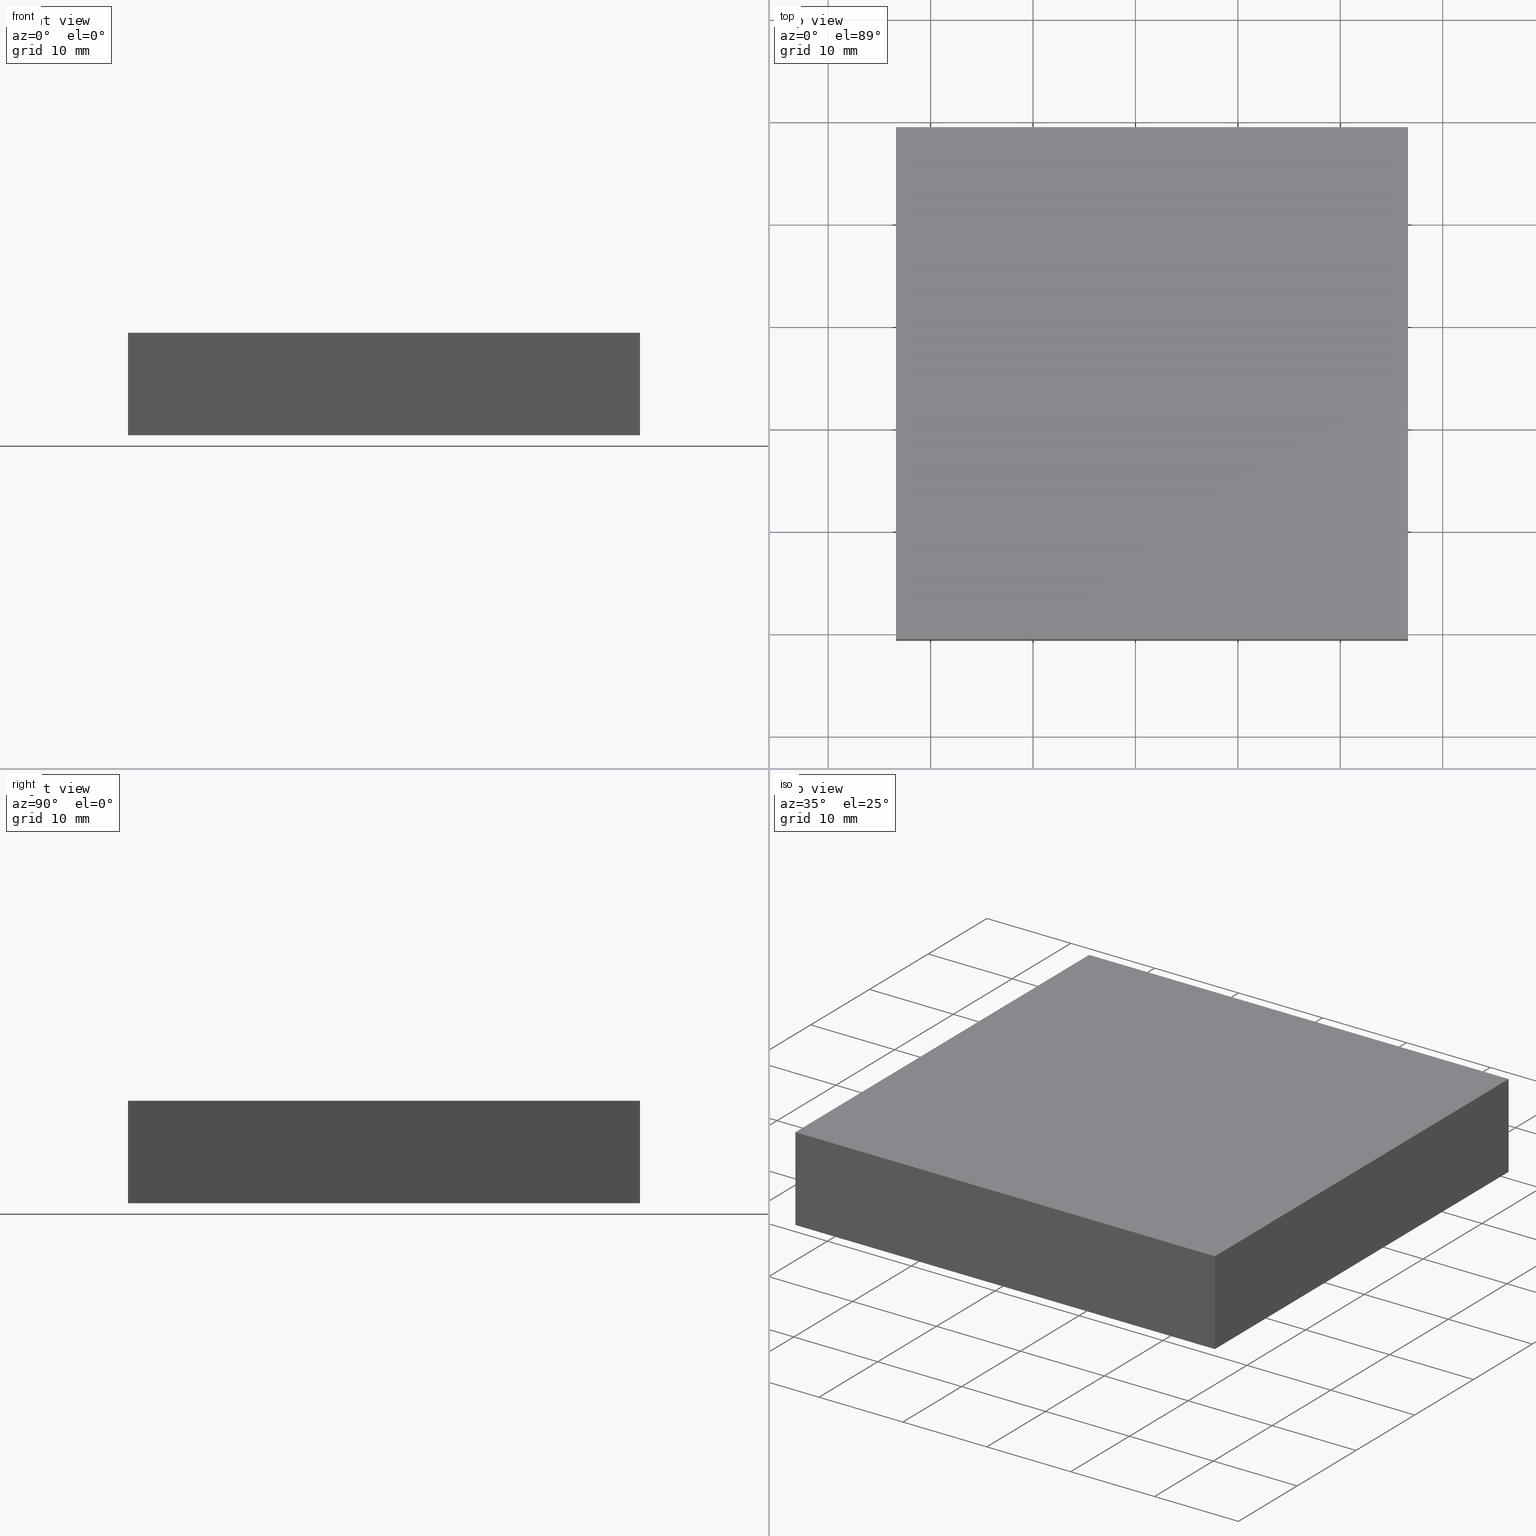
[diagram: canonical four-view strip — front | top / right | iso, engineering-drawing reading convention]
A machine part, canonical four-view strip (front | top / right | iso — engineering-drawing reading convention). The complete STEP part file that produces these views, byte-faithful:
ISO-10303-21;
HEADER;
FILE_DESCRIPTION (( 'STEP AP214' ),
    '1' );
FILE_NAME ('260077.STEP',
    '2019-07-16T05:32:22',
    ( '' ),
    ( '' ),
    'SwSTEP 2.0',
    'SolidWorks 2016',
    '' );
FILE_SCHEMA (( 'AUTOMOTIVE_DESIGN' ));
ENDSEC;

DATA;
#1 = VECTOR ( 'NONE', #160, 1000.000000000000000 ) ;
#2 = STYLED_ITEM ( 'NONE', ( #111 ), #107 ) ;
#3 = DIRECTION ( 'NONE',  ( 0.0000000000000000000, -1.000000000000000000, 0.0000000000000000000 ) ) ;
#4 = VERTEX_POINT ( 'NONE', #87 ) ;
#5 = DIRECTION ( 'NONE',  ( -1.000000000000000000, 0.0000000000000000000, -0.0000000000000000000 ) ) ;
#6 = DIRECTION ( 'NONE',  ( -0.0000000000000000000, -0.0000000000000000000, -1.000000000000000000 ) ) ;
#7 = DIRECTION ( 'NONE',  ( -0.0000000000000000000, -0.0000000000000000000, -1.000000000000000000 ) ) ;
#8 = CARTESIAN_POINT ( 'NONE',  ( 416.6175434576858800, 179.3843025342640100, 10.00000000000000000 ) ) ;
#9 = CARTESIAN_POINT ( 'NONE',  ( 416.6175434576858800, 179.3843025342640100, 10.00000000000000000 ) ) ;
#10 = PLANE ( 'NONE',  #51 ) ;
#11 = ADVANCED_FACE ( 'NONE', ( #109 ), #191, .T. ) ;
#12 = EDGE_LOOP ( 'NONE', ( #174, #130, #67, #46 ) ) ;
#13 = VECTOR ( 'NONE', #49, 1000.000000000000000 ) ;
#14 = EDGE_CURVE ( 'NONE', #162, #15, #88, .T. ) ;
#15 = VERTEX_POINT ( 'NONE', #192 ) ;
#16 = FACE_OUTER_BOUND ( 'NONE', #64, .T. ) ;
#17 = CARTESIAN_POINT ( 'NONE',  ( 416.6175434576858800, 179.3843025342640100, 0.0000000000000000000 ) ) ;
#18 = DIRECTION ( 'NONE',  ( -1.000000000000000000, -0.0000000000000000000, -0.0000000000000000000 ) ) ;
#19 = DIRECTION ( 'NONE',  ( -0.0000000000000000000, -1.000000000000000000, -0.0000000000000000000 ) ) ;
#20 = PLANE ( 'NONE',  #44 ) ;
#21 = AXIS2_PLACEMENT_3D ( 'NONE', #148, #61, #69 ) ;
#22 = CARTESIAN_POINT ( 'NONE',  ( 416.6175434576858800, 129.3843025342640100, 10.00000000000000000 ) ) ;
#23 = DIRECTION ( 'NONE',  ( 1.000000000000000000, -0.0000000000000000000, -0.0000000000000000000 ) ) ;
#24 =( LENGTH_UNIT ( ) NAMED_UNIT ( * ) SI_UNIT ( .MILLI., .METRE. ) );
#25 = EDGE_CURVE ( 'NONE', #4, #32, #186, .T. ) ;
#26 = VECTOR ( 'NONE', #7, 1000.000000000000000 ) ;
#27 = MECHANICAL_DESIGN_GEOMETRIC_PRESENTATION_REPRESENTATION (  '', ( #2 ), #125 ) ;
#28 = EDGE_LOOP ( 'NONE', ( #155, #137, #68, #146 ) ) ;
#29 = ORIENTED_EDGE ( 'NONE', *, *, #60, .F. ) ;
#30 = PRESENTATION_LAYER_ASSIGNMENT (  '', '', ( #2 ) ) ;
#31 = LINE ( 'NONE', #8, #98 ) ;
#32 = VERTEX_POINT ( 'NONE', #131 ) ;
#33 = CARTESIAN_POINT ( 'NONE',  ( 466.6175434576859400, 129.3843025342640100, 10.00000000000000000 ) ) ;
#34 = PLANE ( 'NONE',  #21 ) ;
#35 = SHAPE_DEFINITION_REPRESENTATION ( #72, #107 ) ;
#36 = AXIS2_PLACEMENT_3D ( 'NONE', #84, #189, #5 ) ;
#37 = DIRECTION ( 'NONE',  ( 0.0000000000000000000, -0.0000000000000000000, -1.000000000000000000 ) ) ;
#38 = VECTOR ( 'NONE', #18, 1000.000000000000000 ) ;
#39 = EDGE_CURVE ( 'NONE', #32, #77, #140, .T. ) ;
#40 = PRODUCT_DEFINITION_CONTEXT ( 'detailed design', #94, 'design' ) ;
#41 = ADVANCED_FACE ( 'NONE', ( #16 ), #158, .F. ) ;
#42 = APPLICATION_PROTOCOL_DEFINITION ( 'draft international standard', 'automotive_design', 1998, #94 ) ;
#43 = ORIENTED_EDGE ( 'NONE', *, *, #181, .T. ) ;
#44 = AXIS2_PLACEMENT_3D ( 'NONE', #132, #116, #167 ) ;
#45 = FACE_OUTER_BOUND ( 'NONE', #124, .T. ) ;
#46 = ORIENTED_EDGE ( 'NONE', *, *, #145, .T. ) ;
#47 = ORIENTED_EDGE ( 'NONE', *, *, #118, .T. ) ;
#48 = AXIS2_PLACEMENT_3D ( 'NONE', #82, #3, #37 ) ;
#49 = DIRECTION ( 'NONE',  ( -0.0000000000000000000, -1.000000000000000000, -0.0000000000000000000 ) ) ;
#50 = LINE ( 'NONE', #103, #26 ) ;
#51 = AXIS2_PLACEMENT_3D ( 'NONE', #182, #91, #121 ) ;
#52 = SURFACE_STYLE_FILL_AREA ( #151 ) ;
#53 = ORIENTED_EDGE ( 'NONE', *, *, #169, .T. ) ;
#54 = CARTESIAN_POINT ( 'NONE',  ( 466.6175434576859400, 129.3843025342640100, 0.0000000000000000000 ) ) ;
#55 = CARTESIAN_POINT ( 'NONE',  ( 416.6175434576858800, 129.3843025342640100, 10.00000000000000000 ) ) ;
#56 = UNCERTAINTY_MEASURE_WITH_UNIT (LENGTH_MEASURE( 1.000000000000000100E-005 ), #150, 'distance_accuracy_value', 'NONE');
#57 =( GEOMETRIC_REPRESENTATION_CONTEXT ( 3 ) GLOBAL_UNCERTAINTY_ASSIGNED_CONTEXT ( ( #136 ) ) GLOBAL_UNIT_ASSIGNED_CONTEXT ( ( #139, #188, #108 ) ) REPRESENTATION_CONTEXT ( 'NONE', 'WORKASPACE' ) );
#58 = VECTOR ( 'NONE', #19, 1000.000000000000000 ) ;
#59 = CARTESIAN_POINT ( 'NONE',  ( 416.6175434576858800, 129.3843025342640100, 0.0000000000000000000 ) ) ;
#60 = EDGE_CURVE ( 'NONE', #120, #162, #176, .T. ) ;
#61 = DIRECTION ( 'NONE',  ( 0.0000000000000000000, 0.0000000000000000000, -1.000000000000000000 ) ) ;
#62 = SURFACE_STYLE_USAGE ( .BOTH. , #122 ) ;
#63 = FACE_OUTER_BOUND ( 'NONE', #177, .T. ) ;
#64 = EDGE_LOOP ( 'NONE', ( #75, #80, #114, #166 ) ) ;
#65 = PRODUCT ( '260077', '260077', '', ( #141 ) ) ;
#66 = LINE ( 'NONE', #73, #119 ) ;
#67 = ORIENTED_EDGE ( 'NONE', *, *, #147, .T. ) ;
#68 = ORIENTED_EDGE ( 'NONE', *, *, #25, .F. ) ;
#69 = DIRECTION ( 'NONE',  ( -1.000000000000000000, 0.0000000000000000000, -0.0000000000000000000 ) ) ;
#70 = DIRECTION ( 'NONE',  ( -0.0000000000000000000, 1.000000000000000000, -0.0000000000000000000 ) ) ;
#71 = VECTOR ( 'NONE', #70, 1000.000000000000000 ) ;
#72 = PRODUCT_DEFINITION_SHAPE ( 'NONE', 'NONE',  #127 ) ;
#73 = CARTESIAN_POINT ( 'NONE',  ( 466.6175434576859400, 179.3843025342640100, 10.00000000000000000 ) ) ;
#74 = VECTOR ( 'NONE', #193, 1000.000000000000000 ) ;
#75 = ORIENTED_EDGE ( 'NONE', *, *, #25, .T. ) ;
#76 = APPLICATION_PROTOCOL_DEFINITION ( 'draft international standard', 'automotive_design', 1998, #110 ) ;
#77 = VERTEX_POINT ( 'NONE', #59 ) ;
#78 = AXIS2_PLACEMENT_3D ( 'NONE', #93, #104, #196 ) ;
#79 = FACE_OUTER_BOUND ( 'NONE', #199, .T. ) ;
#80 = ORIENTED_EDGE ( 'NONE', *, *, #169, .F. ) ;
#81 = STYLED_ITEM ( 'NONE', ( #102 ), #85 ) ;
#82 = CARTESIAN_POINT ( 'NONE',  ( 416.6175434576858800, 179.3843025342640100, 10.00000000000000000 ) ) ;
#83 = SURFACE_STYLE_FILL_AREA ( #154 ) ;
#84 = CARTESIAN_POINT ( 'NONE',  ( 0.0000000000000000000, 0.0000000000000000000, 0.0000000000000000000 ) ) ;
#85 = MANIFOLD_SOLID_BREP ( '͹̨-����1', #159 ) ;
#86 = ORIENTED_EDGE ( 'NONE', *, *, #133, .F. ) ;
#87 = CARTESIAN_POINT ( 'NONE',  ( 466.6175434576859400, 179.3843025342640100, 0.0000000000000000000 ) ) ;
#88 = LINE ( 'NONE', #33, #1 ) ;
#89 = CARTESIAN_POINT ( 'NONE',  ( 0.0000000000000000000, 0.0000000000000000000, 0.0000000000000000000 ) ) ;
#90 =( NAMED_UNIT ( * ) SI_UNIT ( $, .STERADIAN. ) SOLID_ANGLE_UNIT ( ) );
#91 = DIRECTION ( 'NONE',  ( 0.0000000000000000000, 1.000000000000000000, -0.0000000000000000000 ) ) ;
#92 = LINE ( 'NONE', #105, #135 ) ;
#93 = CARTESIAN_POINT ( 'NONE',  ( 416.6175434576858800, 154.3843025342640100, 10.00000000000000000 ) ) ;
#94 = APPLICATION_CONTEXT ( 'automotive_design' ) ;
#95 = ORIENTED_EDGE ( 'NONE', *, *, #133, .T. ) ;
#96 =( NAMED_UNIT ( * ) PLANE_ANGLE_UNIT ( ) SI_UNIT ( $, .RADIAN. ) );
#97 = AXIS2_PLACEMENT_3D ( 'NONE', #89, #143, #168 ) ;
#98 = VECTOR ( 'NONE', #149, 1000.000000000000000 ) ;
#99 = ORIENTED_EDGE ( 'NONE', *, *, #14, .F. ) ;
#100 = LINE ( 'NONE', #9, #74 ) ;
#101 = VECTOR ( 'NONE', #23, 1000.000000000000000 ) ;
#102 = PRESENTATION_STYLE_ASSIGNMENT (( #197 ) ) ;
#103 = CARTESIAN_POINT ( 'NONE',  ( 466.6175434576859400, 129.3843025342640100, 10.00000000000000000 ) ) ;
#104 = DIRECTION ( 'NONE',  ( 1.000000000000000000, 0.0000000000000000000, 0.0000000000000000000 ) ) ;
#105 = CARTESIAN_POINT ( 'NONE',  ( 416.6175434576858800, 129.3843025342640100, 10.00000000000000000 ) ) ;
#106 = ADVANCED_FACE ( 'NONE', ( #63 ), #20, .F. ) ;
#107 = ADVANCED_BREP_SHAPE_REPRESENTATION ( '260077', ( #85, #97 ), #57 ) ;
#108 =( NAMED_UNIT ( * ) SI_UNIT ( $, .STERADIAN. ) SOLID_ANGLE_UNIT ( ) );
#109 = FACE_OUTER_BOUND ( 'NONE', #28, .T. ) ;
#110 = APPLICATION_CONTEXT ( 'automotive_design' ) ;
#111 = PRESENTATION_STYLE_ASSIGNMENT (( #62 ) ) ;
#112 = PRODUCT_DEFINITION_FORMATION_WITH_SPECIFIED_SOURCE ( '�κ�', '', #65, .NOT_KNOWN. ) ;
#113 =( GEOMETRIC_REPRESENTATION_CONTEXT ( 3 ) GLOBAL_UNCERTAINTY_ASSIGNED_CONTEXT ( ( #56 ) ) GLOBAL_UNIT_ASSIGNED_CONTEXT ( ( #150, #183, #90 ) ) REPRESENTATION_CONTEXT ( 'NONE', 'WORKASPACE' ) );
#114 = ORIENTED_EDGE ( 'NONE', *, *, #145, .F. ) ;
#115 = CARTESIAN_POINT ( 'NONE',  ( 416.6175434576858800, 154.3843025342640100, 0.0000000000000000000 ) ) ;
#116 = DIRECTION ( 'NONE',  ( -1.000000000000000000, 0.0000000000000000000, 0.0000000000000000000 ) ) ;
#117 = PLANE ( 'NONE',  #78 ) ;
#118 = EDGE_CURVE ( 'NONE', #77, #157, #201, .T. ) ;
#119 = VECTOR ( 'NONE', #161, 1000.000000000000000 ) ;
#120 = VERTEX_POINT ( 'NONE', #134 ) ;
#121 = DIRECTION ( 'NONE',  ( 0.0000000000000000000, 0.0000000000000000000, 1.000000000000000000 ) ) ;
#122 = SURFACE_SIDE_STYLE ('',( #83 ) ) ;
#123 = ADVANCED_FACE ( 'NONE', ( #79 ), #117, .F. ) ;
#124 = EDGE_LOOP ( 'NONE', ( #47, #179, #99, #95 ) ) ;
#125 =( GEOMETRIC_REPRESENTATION_CONTEXT ( 3 ) GLOBAL_UNCERTAINTY_ASSIGNED_CONTEXT ( ( #180 ) ) GLOBAL_UNIT_ASSIGNED_CONTEXT ( ( #24, #96, #187 ) ) REPRESENTATION_CONTEXT ( 'NONE', 'WORKASPACE' ) );
#126 = ORIENTED_EDGE ( 'NONE', *, *, #175, .T. ) ;
#127 = PRODUCT_DEFINITION ( 'δ֪', '', #112, #40 ) ;
#128 = LINE ( 'NONE', #163, #71 ) ;
#129 = ORIENTED_EDGE ( 'NONE', *, *, #173, .F. ) ;
#130 = ORIENTED_EDGE ( 'NONE', *, *, #14, .T. ) ;
#131 = CARTESIAN_POINT ( 'NONE',  ( 416.6175434576858800, 179.3843025342640100, 0.0000000000000000000 ) ) ;
#132 = CARTESIAN_POINT ( 'NONE',  ( 466.6175434576859400, 179.3843025342640100, 10.00000000000000000 ) ) ;
#133 = EDGE_CURVE ( 'NONE', #162, #77, #92, .T. ) ;
#134 = CARTESIAN_POINT ( 'NONE',  ( 416.6175434576858800, 179.3843025342640100, 10.00000000000000000 ) ) ;
#135 = VECTOR ( 'NONE', #184, 1000.000000000000000 ) ;
#136 = UNCERTAINTY_MEASURE_WITH_UNIT (LENGTH_MEASURE( 1.000000000000000100E-005 ), #139, 'distance_accuracy_value', 'NONE');
#137 = ORIENTED_EDGE ( 'NONE', *, *, #39, .F. ) ;
#138 = CARTESIAN_POINT ( 'NONE',  ( 466.6175434576859400, 179.3843025342640100, 10.00000000000000000 ) ) ;
#139 =( LENGTH_UNIT ( ) NAMED_UNIT ( * ) SI_UNIT ( .MILLI., .METRE. ) );
#140 = LINE ( 'NONE', #115, #13 ) ;
#141 = PRODUCT_CONTEXT ( 'NONE', #110, 'mechanical' ) ;
#142 = ADVANCED_FACE ( 'NONE', ( #45 ), #10, .F. ) ;
#143 = DIRECTION ( 'NONE',  ( 0.0000000000000000000, 0.0000000000000000000, 1.000000000000000000 ) ) ;
#144 = VECTOR ( 'NONE', #6, 1000.000000000000000 ) ;
#145 = EDGE_CURVE ( 'NONE', #202, #120, #31, .T. ) ;
#146 = ORIENTED_EDGE ( 'NONE', *, *, #175, .F. ) ;
#147 = EDGE_CURVE ( 'NONE', #15, #202, #66, .T. ) ;
#148 = CARTESIAN_POINT ( 'NONE',  ( 0.0000000000000000000, 0.0000000000000000000, 10.00000000000000000 ) ) ;
#149 = DIRECTION ( 'NONE',  ( -1.000000000000000000, -0.0000000000000000000, -0.0000000000000000000 ) ) ;
#150 =( LENGTH_UNIT ( ) NAMED_UNIT ( * ) SI_UNIT ( .MILLI., .METRE. ) );
#151 = FILL_AREA_STYLE ('',( #164 ) ) ;
#152 = ADVANCED_FACE ( 'NONE', ( #178 ), #34, .F. ) ;
#153 = CARTESIAN_POINT ( 'NONE',  ( 466.6175434576859400, 129.3843025342640100, 0.0000000000000000000 ) ) ;
#154 = FILL_AREA_STYLE ('',( #195 ) ) ;
#155 = ORIENTED_EDGE ( 'NONE', *, *, #118, .F. ) ;
#156 = LINE ( 'NONE', #138, #144 ) ;
#157 = VERTEX_POINT ( 'NONE', #153 ) ;
#158 = PLANE ( 'NONE',  #48 ) ;
#159 = CLOSED_SHELL ( 'NONE', ( #142, #106, #41, #123, #152, #11 ) ) ;
#160 = DIRECTION ( 'NONE',  ( 1.000000000000000000, -0.0000000000000000000, -0.0000000000000000000 ) ) ;
#161 = DIRECTION ( 'NONE',  ( -0.0000000000000000000, 1.000000000000000000, -0.0000000000000000000 ) ) ;
#162 = VERTEX_POINT ( 'NONE', #55 ) ;
#163 = CARTESIAN_POINT ( 'NONE',  ( 466.6175434576859400, 179.3843025342640100, 0.0000000000000000000 ) ) ;
#164 = FILL_AREA_STYLE_COLOUR ( '', #170 ) ;
#165 = SURFACE_SIDE_STYLE ('',( #52 ) ) ;
#166 = ORIENTED_EDGE ( 'NONE', *, *, #173, .T. ) ;
#167 = DIRECTION ( 'NONE',  ( 0.0000000000000000000, 0.0000000000000000000, 1.000000000000000000 ) ) ;
#168 = DIRECTION ( 'NONE',  ( 1.000000000000000000, 0.0000000000000000000, 0.0000000000000000000 ) ) ;
#169 = EDGE_CURVE ( 'NONE', #120, #32, #100, .T. ) ;
#170 = COLOUR_RGB ( '',1.000000000000000000, 1.000000000000000000, 1.000000000000000000 ) ;
#171 = ORIENTED_EDGE ( 'NONE', *, *, #147, .F. ) ;
#172 = PRODUCT_RELATED_PRODUCT_CATEGORY ( 'part', '', ( #65 ) ) ;
#173 = EDGE_CURVE ( 'NONE', #202, #4, #156, .T. ) ;
#174 = ORIENTED_EDGE ( 'NONE', *, *, #60, .T. ) ;
#175 = EDGE_CURVE ( 'NONE', #157, #4, #128, .T. ) ;
#176 = LINE ( 'NONE', #22, #58 ) ;
#177 = EDGE_LOOP ( 'NONE', ( #126, #129, #171, #43 ) ) ;
#178 = FACE_OUTER_BOUND ( 'NONE', #12, .T. ) ;
#179 = ORIENTED_EDGE ( 'NONE', *, *, #181, .F. ) ;
#180 = UNCERTAINTY_MEASURE_WITH_UNIT (LENGTH_MEASURE( 1.000000000000000100E-005 ), #24, 'distance_accuracy_value', 'NONE');
#181 = EDGE_CURVE ( 'NONE', #15, #157, #50, .T. ) ;
#182 = CARTESIAN_POINT ( 'NONE',  ( 466.6175434576859400, 129.3843025342640100, 10.00000000000000000 ) ) ;
#183 =( NAMED_UNIT ( * ) PLANE_ANGLE_UNIT ( ) SI_UNIT ( $, .RADIAN. ) );
#184 = DIRECTION ( 'NONE',  ( -0.0000000000000000000, -0.0000000000000000000, -1.000000000000000000 ) ) ;
#185 = MECHANICAL_DESIGN_GEOMETRIC_PRESENTATION_REPRESENTATION (  '', ( #81 ), #113 ) ;
#186 = LINE ( 'NONE', #17, #38 ) ;
#187 =( NAMED_UNIT ( * ) SI_UNIT ( $, .STERADIAN. ) SOLID_ANGLE_UNIT ( ) );
#188 =( NAMED_UNIT ( * ) PLANE_ANGLE_UNIT ( ) SI_UNIT ( $, .RADIAN. ) );
#189 = DIRECTION ( 'NONE',  ( 0.0000000000000000000, 0.0000000000000000000, -1.000000000000000000 ) ) ;
#190 = PRESENTATION_LAYER_ASSIGNMENT (  '', '', ( #81 ) ) ;
#191 = PLANE ( 'NONE',  #36 ) ;
#192 = CARTESIAN_POINT ( 'NONE',  ( 466.6175434576859400, 129.3843025342640100, 10.00000000000000000 ) ) ;
#193 = DIRECTION ( 'NONE',  ( -0.0000000000000000000, -0.0000000000000000000, -1.000000000000000000 ) ) ;
#194 = ORIENTED_EDGE ( 'NONE', *, *, #39, .T. ) ;
#195 = FILL_AREA_STYLE_COLOUR ( '', #198 ) ;
#196 = DIRECTION ( 'NONE',  ( 0.0000000000000000000, 0.0000000000000000000, -1.000000000000000000 ) ) ;
#197 = SURFACE_STYLE_USAGE ( .BOTH. , #165 ) ;
#198 = COLOUR_RGB ( '',1.000000000000000000, 1.000000000000000000, 1.000000000000000000 ) ;
#199 = EDGE_LOOP ( 'NONE', ( #194, #86, #29, #53 ) ) ;
#200 = CARTESIAN_POINT ( 'NONE',  ( 466.6175434576859400, 179.3843025342640100, 10.00000000000000000 ) ) ;
#201 = LINE ( 'NONE', #54, #101 ) ;
#202 = VERTEX_POINT ( 'NONE', #200 ) ;
ENDSEC;
END-ISO-10303-21;
